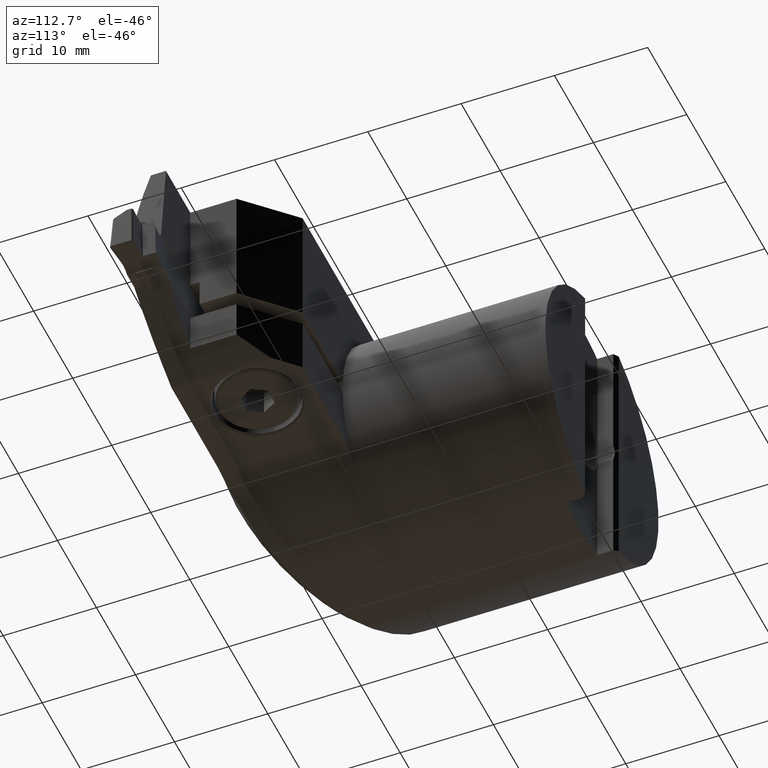
[diagram: clean part render]
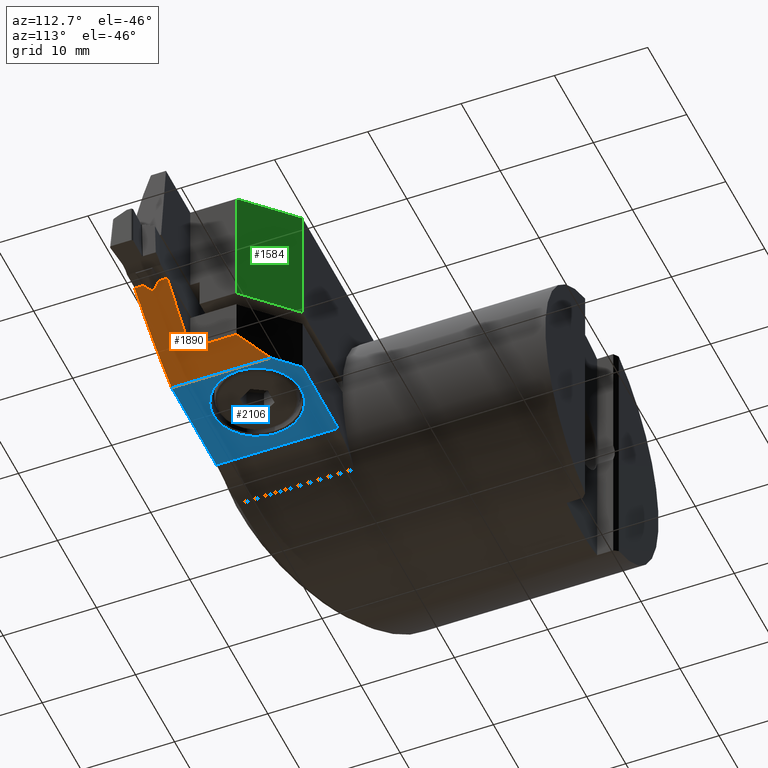
[diagram: same view with three faces highlighted in distinct colors, each labeled with its STEP entity id]
A machine part, auxiliary view with three faces highlighted in distinct colors.
Their STEP definitions:

[orange] entity #1890 — the highlighted planar face has unit normal (0.5878, 0, -0.809).
#816=EDGE_CURVE('NONE',#992,#1500,#2289,.T.);
#944=VERTEX_POINT('NONE',#2429);
#992=VERTEX_POINT('NONE',#2486);
#1132=VERTEX_POINT('NONE',#2632);
#1146=VERTEX_POINT('NONE',#2648);
#1154=VERTEX_POINT('NONE',#2656);
#1204=EDGE_CURVE('NONE',#1312,#1718,#2714,.T.);
#1312=VERTEX_POINT('NONE',#2831);
#1348=EDGE_CURVE('NONE',#1312,#1132,#2870,.F.);
#1374=EDGE_CURVE('NONE',#1500,#1462,#2899,.T.);
#1462=VERTEX_POINT('NONE',#2999);
#1500=VERTEX_POINT('NONE',#3041);
#1718=VERTEX_POINT('NONE',#3276);
#1828=EDGE_CURVE('NONE',#1154,#1146,#3402,.T.);
#1870=EDGE_CURVE('NONE',#1154,#944,#3444,.F.);
#1890=ADVANCED_FACE('NONE',(#3466),#3467,.T.);
#1938=EDGE_CURVE('Kante9',#1132,#992,#3523,.T.);
#1954=EDGE_CURVE('NONE',#1146,#1462,#3540,.T.);
#2086=EDGE_CURVE('NONE',#1718,#944,#3684,.T.);
#2289=LINE('',#4038,#4039);
#2429=CARTESIAN_POINT('',(35.6335679069214,-32.581731409782,-0.5));
#2486=CARTESIAN_POINT('',(27.1,-34.802753041037,-6.70000000000001));
#2632=CARTESIAN_POINT('',(35.6335679069214,-35.1977953716015,-0.500000000000015));
#2648=CARTESIAN_POINT('',(29.7,-31.7,-4.81098942718608));
#2656=CARTESIAN_POINT('',(35.6335679069214,-31.7,-0.5));
#2714=LINE('',#4786,#4787);
#2831=CARTESIAN_POINT('',(35.6335679069214,-34.3137822173509,-0.5));
#2870=LINE('',#5042,#5043);
#2899=LINE('',#5078,#5079);
#2999=CARTESIAN_POINT('',(29.7,-26.75,-4.81098942718608));
#3041=CARTESIAN_POINT('',(27.1,-24.15,-6.7));
#3276=CARTESIAN_POINT('',(34.9453769466858,-33.4477568135664,-1.0));
#3402=LINE('',#5978,#5979);
#3444=LINE('',#6071,#6072);
#3466=FACE_OUTER_BOUND('',#6114,.T.);
#3467=PLANE('',#6115);
#3523=ELLIPSE('',#6209,96.4638016671221,56.7);
#3540=LINE('',#6249,#6250);
#3684=LINE('',#6586,#6587);
#4038=CARTESIAN_POINT('',(27.1,-35.1999999999518,-6.7));
#4039=VECTOR('',#6999,1.0);
#4786=CARTESIAN_POINT('',(29.082394365602,-26.0697292739051,-5.25970618611195));
#4787=VECTOR('',#7437,1.0);
#5042=CARTESIAN_POINT('',(35.6335679069214,-35.2,-0.5));
#5043=VECTOR('',#7589,1.0);
#5078=CARTESIAN_POINT('',(33.4241266821291,-30.4741266821291,-2.10525301293979));
#5079=VECTOR('',#7619,1.0);
#5978=CARTESIAN_POINT('',(33.0963008395682,-31.7,-2.34343242933952));
#5979=VECTOR('',#8173,1.0);
#6071=CARTESIAN_POINT('',(35.6335679069214,-35.2,-0.5));
#6072=VECTOR('',#8188,1.0);
#6114=EDGE_LOOP('',(#8216,#8217,#8218,#8219,#8220,#8221,#8222,#8223,#8224));
#6115=AXIS2_PLACEMENT_3D('',#8225,#8226,#8227);
#6209=AXIS2_PLACEMENT_3D('',#8324,#8325,#8326);
#6249=CARTESIAN_POINT('',(29.7,-33.45,-4.81098942718608));
#6250=VECTOR('',#8335,1.0);
#6586=CARTESIAN_POINT('',(28.1402051766546,-42.0114433053886,-5.94424670130912));
#6587=VECTOR('',#8491,1.0);
#6999=DIRECTION('',(0.0,1.0,0.0));
#7437=DIRECTION('',(-0.566915270681805,0.713411036430493,-0.411888053925997));
#7589=DIRECTION('',(0.0,1.0,0.0));
#7619=DIRECTION('',(0.628960169645096,-0.628960169645095,0.456966311668623));
#8173=DIRECTION('',(-0.809016994374951,4.10811880628274E-031,-0.587785252292469));
#8188=DIRECTION('',(0.0,1.0,0.0));
#8216=ORIENTED_EDGE('',*,*,#1348,.T.);
#8217=ORIENTED_EDGE('',*,*,#1938,.T.);
#8218=ORIENTED_EDGE('',*,*,#816,.T.);
#8219=ORIENTED_EDGE('',*,*,#1374,.T.);
#8220=ORIENTED_EDGE('',*,*,#1954,.F.);
#8221=ORIENTED_EDGE('',*,*,#1828,.F.);
#8222=ORIENTED_EDGE('',*,*,#1870,.T.);
#8223=ORIENTED_EDGE('',*,*,#2086,.F.);
#8224=ORIENTED_EDGE('',*,*,#1204,.F.);
#8225=CARTESIAN_POINT('',(41.1,-35.2,3.47159539207493));
#8226=DIRECTION('',(0.587785252292469,0.0,-0.809016994374951));
#8227=DIRECTION('',(0.0,1.0,0.0));
#8324=CARTESIAN_POINT('',(36.321758867157,21.5,0.0));
#8325=DIRECTION('',(0.587785252292469,0.0,-0.809016994374951));
#8326=DIRECTION('',(-0.809016994374951,0.0,-0.587785252292469));
#8335=DIRECTION('',(0.0,1.0,0.0));
#8491=DIRECTION('',(0.566915270681805,0.713411036430493,0.411888053925997));

[blue] entity #2106 — the highlighted planar face has unit normal (-0, -0, 1).
#816=EDGE_CURVE('NONE',#992,#1500,#2289,.T.);
#818=VERTEX_POINT('NONE',#2291);
#992=VERTEX_POINT('NONE',#2486);
#1124=VERTEX_POINT('NONE',#2624);
#1356=VERTEX_POINT('NONE',#2879);
#1360=EDGE_CURVE('Kante4',#818,#1124,#2884,.F.);
#1420=VERTEX_POINT('NONE',#2951);
#1450=EDGE_CURVE('NONE',#1420,#1124,#2987,.T.);
#1468=EDGE_CURVE('NONE',#1420,#1500,#3007,.F.);
#1500=VERTEX_POINT('NONE',#3041);
#1566=VERTEX_POINT('NONE',#3109);
#1652=EDGE_CURVE('Kante3',#1566,#1356,#3207,.F.);
#1826=EDGE_CURVE('NONE',#818,#992,#3400,.T.);
#2106=ADVANCED_FACE('NONE',(#3707,#3708),#3709,.F.);
#2148=EDGE_CURVE('Kante3',#1356,#1566,#3754,.T.);
#2289=LINE('',#4038,#4039);
#2291=CARTESIAN_POINT('',(15.6,-34.802753041037,-6.70000000000001));
#2486=CARTESIAN_POINT('',(27.1,-34.802753041037,-6.70000000000001));
#2624=CARTESIAN_POINT('',(15.6,-21.75,-6.7));
#2879=CARTESIAN_POINT('',(17.3,-27.75,-6.7));
#2884=LINE('',#5058,#5059);
#2951=CARTESIAN_POINT('',(24.7,-21.75,-6.7));
#2987=LINE('',#5236,#5237);
#3007=LINE('',#5260,#5261);
#3041=CARTESIAN_POINT('',(27.1,-24.15,-6.7));
#3109=CARTESIAN_POINT('',(26.7,-27.75,-6.7));
#3207=CIRCLE('',#5625,4.70000000000004);
#3400=LINE('',#5974,#5975);
#3707=FACE_OUTER_BOUND('',#6629,.T.);
#3708=FACE_BOUND('',#6630,.T.);
#3709=PLANE('',#6631);
#3754=CIRCLE('',#6789,4.70000000000004);
#4038=CARTESIAN_POINT('',(27.1,-35.1999999999518,-6.7));
#4039=VECTOR('',#6999,1.0);
#5058=CARTESIAN_POINT('',(15.6,-29.17,-6.7));
#5059=VECTOR('',#7604,1.0);
#5236=CARTESIAN_POINT('',(6.25,-21.75,-6.7));
#5237=VECTOR('',#7739,1.0);
#5260=CARTESIAN_POINT('',(27.5124999999759,-24.5624999999759,-6.7));
#5261=VECTOR('',#7751,1.0);
#5625=AXIS2_PLACEMENT_3D('',#7949,#7950,#7951);
#5974=CARTESIAN_POINT('',(-25.9440249167753,-34.802753041037,-6.70000000000001));
#5975=VECTOR('',#8172,1.0);
#6629=EDGE_LOOP('',(#8526,#8527,#8528,#8529,#8530));
#6630=EDGE_LOOP('',(#8531,#8532));
#6631=AXIS2_PLACEMENT_3D('',#8533,#8534,#8535);
#6789=AXIS2_PLACEMENT_3D('',#8576,#8577,#8578);
#6999=DIRECTION('',(0.0,1.0,0.0));
#7604=DIRECTION('',(0.0,-1.0,0.0));
#7739=DIRECTION('',(-1.0,0.0,-1.41610079671576E-016));
#7751=DIRECTION('',(-0.707106781186548,0.707106781186547,-1.00133447620139E-016));
#7949=CARTESIAN_POINT('',(22.0,-27.75,-6.7));
#7950=DIRECTION('',(1.41610079671576E-016,0.0,-1.0));
#7951=DIRECTION('',(1.0,0.0,1.41610079671576E-016));
#8172=DIRECTION('',(1.0,0.0,0.0));
#8526=ORIENTED_EDGE('',*,*,#1826,.F.);
#8527=ORIENTED_EDGE('',*,*,#1360,.T.);
#8528=ORIENTED_EDGE('',*,*,#1450,.F.);
#8529=ORIENTED_EDGE('',*,*,#1468,.T.);
#8530=ORIENTED_EDGE('',*,*,#816,.F.);
#8531=ORIENTED_EDGE('',*,*,#1652,.T.);
#8532=ORIENTED_EDGE('',*,*,#2148,.T.);
#8533=CARTESIAN_POINT('',(12.5,-35.1999999999036,-6.7));
#8534=DIRECTION('',(-1.41610079671576E-016,-0.0,1.0));
#8535=DIRECTION('',(-1.0,0.0,-1.41610079671576E-016));
#8576=CARTESIAN_POINT('',(22.0,-27.75,-6.7));
#8577=DIRECTION('',(-1.41610079671576E-016,-0.0,1.0));
#8578=DIRECTION('',(1.0,0.0,1.41610079671576E-016));

[green] entity #1584 — the highlighted planar face has unit normal (0.7071, 0.7071, -0).
#938=EDGE_CURVE('NONE',#1456,#1388,#2423,.T.);
#1134=EDGE_CURVE('NONE',#1340,#1564,#2634,.F.);
#1340=VERTEX_POINT('NONE',#2861);
#1388=VERTEX_POINT('NONE',#2914);
#1456=VERTEX_POINT('NONE',#2993);
#1554=EDGE_CURVE('NONE',#1388,#1340,#3097,.T.);
#1564=VERTEX_POINT('NONE',#3107);
#1584=ADVANCED_FACE('NONE',(#3128),#3129,.T.);
#2136=EDGE_CURVE('NONE',#1564,#1456,#3742,.T.);
#2423=LINE('',#4244,#4245);
#2634=LINE('',#4671,#4672);
#2861=CARTESIAN_POINT('',(29.7,-26.75,1.1));
#2914=CARTESIAN_POINT('',(24.7,-21.75,1.1));
#2993=CARTESIAN_POINT('',(24.7,-21.75,14.5));
#3097=LINE('',#5387,#5388);
#3107=CARTESIAN_POINT('',(29.7,-26.75,14.5));
#3128=FACE_OUTER_BOUND('',#5462,.T.);
#3129=PLANE('',#5463);
#3742=LINE('',#6747,#6748);
#4244=CARTESIAN_POINT('',(24.7,-21.75,-7.25));
#4245=VECTOR('',#7145,1.0);
#4671=CARTESIAN_POINT('',(29.7,-26.75,-14.5));
#4672=VECTOR('',#7325,1.0);
#5387=CARTESIAN_POINT('',(28.0125,-25.0625,1.1));
#5388=VECTOR('',#7811,1.0);
#5462=EDGE_LOOP('',(#7834,#7835,#7836,#7837));
#5463=AXIS2_PLACEMENT_3D('',#7838,#7839,#7840);
#6747=CARTESIAN_POINT('',(22.88,-19.93,14.5));
#6748=VECTOR('',#8572,1.0);
#7145=DIRECTION('',(0.0,0.0,-1.0));
#7325=DIRECTION('',(0.0,0.0,-1.0));
#7811=DIRECTION('',(0.707106781186548,-0.707106781186547,0.0));
#7834=ORIENTED_EDGE('',*,*,#1554,.F.);
#7835=ORIENTED_EDGE('',*,*,#938,.F.);
#7836=ORIENTED_EDGE('',*,*,#2136,.F.);
#7837=ORIENTED_EDGE('',*,*,#1134,.F.);
#7838=CARTESIAN_POINT('',(29.7,-26.75,-14.5));
#7839=DIRECTION('',(0.707106781186547,0.707106781186548,-0.0));
#7840=DIRECTION('',(0.0,0.0,1.0));
#8572=DIRECTION('',(-0.707106781186548,0.707106781186547,-0.0));